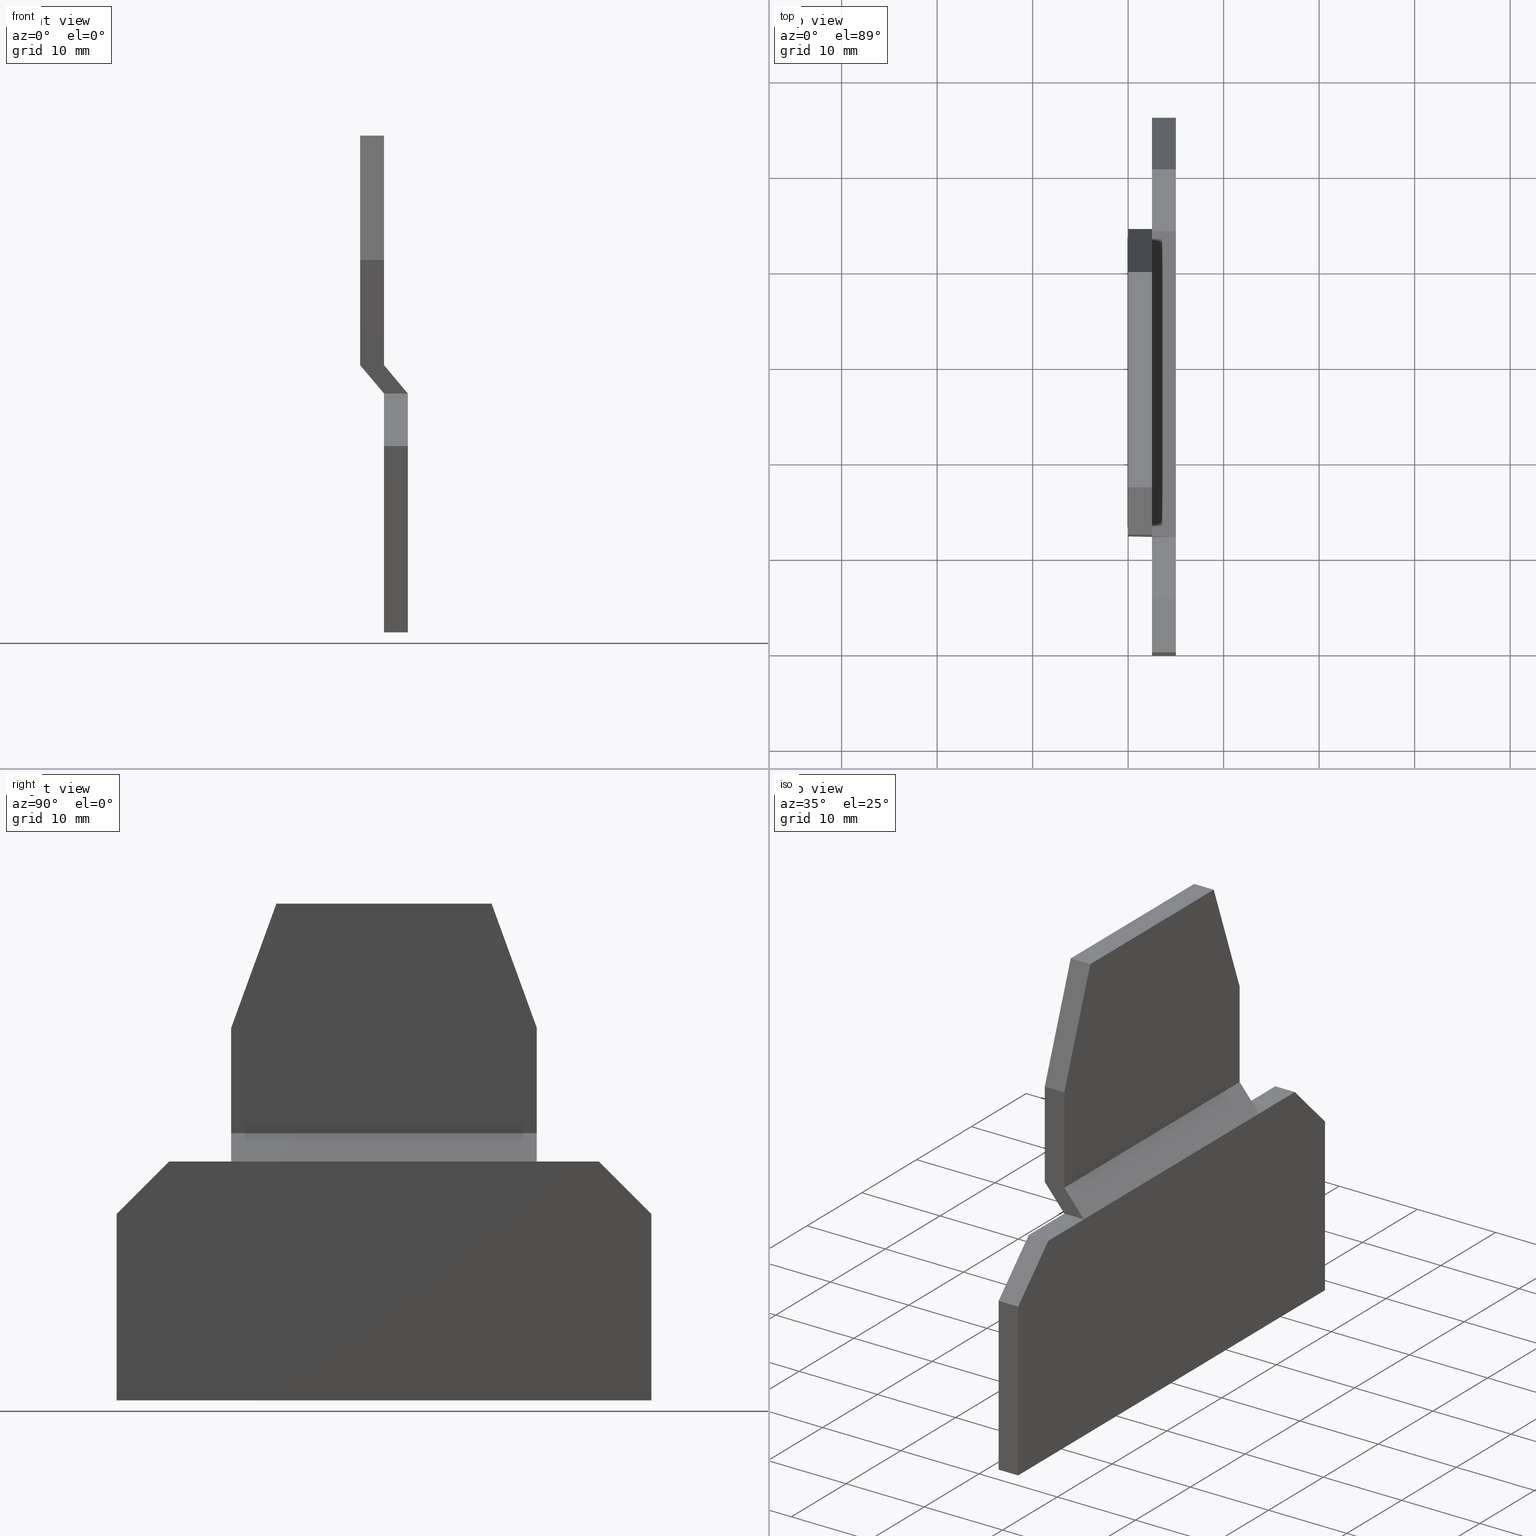
[diagram: canonical four-view strip — front | top / right | iso, engineering-drawing reading convention]
A machine part, canonical four-view strip (front | top / right | iso — engineering-drawing reading convention). The complete STEP part file that produces these views, byte-faithful:
ISO-10303-21;
HEADER;
FILE_DESCRIPTION(('Creo Elements/Direct Modeling STEP Export'),'2;1');
FILE_NAME(
'C:/temp/JobSpoolerServerData/JobServer Files/aceacf60-041b-48f9-a825-c8
1e3da80f4e/work/output/model.stp','2020-06-26T10:07:58',(''),(''),
'Creo Elements/Direct Modeling STEP processor for AP214 (Solid Model)',
'Creo Elements/Direct Modeling 20.1A  29-Sep-2018 (C) Parametric Technol
ogy GmbH','');
FILE_SCHEMA(('AUTOMOTIVE_DESIGN { 1 0 10303 214 1 1 1 1 }'));
ENDSEC;
DATA;
#10=CARTESIAN_POINT('',(12.09335858367,58.630769,-2.5));
#20=DIRECTION('',(0.,1.,-0.));
#30=DIRECTION('',(-1.,0.,0.));
#40=AXIS2_PLACEMENT_3D('',#10,#20,#30);
#50=PLANE('',#40);
#60=CARTESIAN_POINT('',(0.,58.630769,-2.5));
#70=DIRECTION('',(-1.,0.,0.));
#80=VECTOR('',#70,1.);
#90=LINE('',#60,#80);
#100=CARTESIAN_POINT('',(33.9299249545394,58.630769,-2.5));
#110=VERTEX_POINT('',#100);
#120=CARTESIAN_POINT('',(11.3931510454603,58.630769,-2.5));
#130=VERTEX_POINT('',#120);
#140=EDGE_CURVE('',#110,#130,#90,.T.);
#150=ORIENTED_EDGE('',*,*,#140,.T.);
#160=CARTESIAN_POINT('',(33.9299249545394,58.630769,0.));
#170=DIRECTION('',(0.,0.,-1.));
#180=VECTOR('',#170,1.);
#190=LINE('',#160,#180);
#200=CARTESIAN_POINT('',(33.9299249545394,58.630769,8.88178419700125E-16
));
#210=VERTEX_POINT('',#200);
#220=EDGE_CURVE('',#210,#110,#190,.T.);
#230=ORIENTED_EDGE('',*,*,#220,.T.);
#240=CARTESIAN_POINT('',(0.,58.630769,8.88178419700125E-16));
#250=DIRECTION('',(-1.,0.,0.));
#260=VECTOR('',#250,1.);
#270=LINE('',#240,#260);
#280=CARTESIAN_POINT('',(11.3931510454603,58.630769,8.88178419700125E-16
));
#290=VERTEX_POINT('',#280);
#300=EDGE_CURVE('',#210,#290,#270,.T.);
#310=ORIENTED_EDGE('',*,*,#300,.F.);
#320=CARTESIAN_POINT('',(11.3931510454603,58.630769,0.));
#330=DIRECTION('',(0.,0.,-1.));
#340=VECTOR('',#330,1.);
#350=LINE('',#320,#340);
#360=EDGE_CURVE('',#290,#130,#350,.T.);
#370=ORIENTED_EDGE('',*,*,#360,.F.);
#380=EDGE_LOOP('',(#370,#310,#230,#150));
#390=FACE_OUTER_BOUND('',#380,.T.);
#400=ADVANCED_FACE('',(#390),#50,.T.);
#410=COLOUR_RGB('',0.,0.443137288093567,0.709803938865662);
#420=FILL_AREA_STYLE_COLOUR('',#410);
#430=FILL_AREA_STYLE('',(#420));
#440=SURFACE_STYLE_FILL_AREA(#430);
#450=SURFACE_SIDE_STYLE('',(#440));
#460=SURFACE_STYLE_USAGE(.BOTH.,#450);
#470=PRESENTATION_STYLE_ASSIGNMENT((#460));
#480=CARTESIAN_POINT('',(-5.338462,31.630769,-2.5));
#490=DIRECTION('',(0.,-0.642787609686539,0.766044443118978));
#500=DIRECTION('',(0.,-0.766044443118978,-0.642787609686539));
#510=AXIS2_PLACEMENT_3D('',#480,#490,#500);
#520=PLANE('',#510);
#530=CARTESIAN_POINT('',(0.,34.6101529814855,8.88178419700125E-16));
#540=DIRECTION('',(1.,0.,0.));
#550=VECTOR('',#540,1.);
#560=LINE('',#530,#550);
#570=CARTESIAN_POINT('',(6.66153799999999,34.6101529814855,
8.88178419700125E-16));
#580=VERTEX_POINT('',#570);
#590=CARTESIAN_POINT('',(38.6615379999999,34.6101529814855,
8.88178419700125E-16));
#600=VERTEX_POINT('',#590);
#610=EDGE_CURVE('',#580,#600,#560,.T.);
#620=ORIENTED_EDGE('',*,*,#610,.F.);
#630=CARTESIAN_POINT('',(38.661538,0.,-29.0413666017537));
#640=DIRECTION('',(0.,0.766044443118978,0.642787609686539));
#650=VECTOR('',#640,1.);
#660=LINE('',#630,#650);
#670=CARTESIAN_POINT('',(38.6615379999999,31.630769,-2.5));
#680=VERTEX_POINT('',#670);
#690=EDGE_CURVE('',#680,#600,#660,.T.);
#700=ORIENTED_EDGE('',*,*,#690,.T.);
#710=CARTESIAN_POINT('',(0.,31.630769,-2.5));
#720=DIRECTION('',(-1.,0.,0.));
#730=VECTOR('',#720,1.);
#740=LINE('',#710,#730);
#750=CARTESIAN_POINT('',(6.66153799999999,31.630769,-2.5));
#760=VERTEX_POINT('',#750);
#770=EDGE_CURVE('',#680,#760,#740,.T.);
#780=ORIENTED_EDGE('',*,*,#770,.F.);
#790=CARTESIAN_POINT('',(6.66153799999999,0.,-29.0413666017537));
#800=DIRECTION('',(0.,-0.766044443118978,-0.642787609686539));
#810=VECTOR('',#800,1.);
#820=LINE('',#790,#810);
#830=EDGE_CURVE('',#580,#760,#820,.T.);
#840=ORIENTED_EDGE('',*,*,#830,.T.);
#850=EDGE_LOOP('',(#840,#780,#700,#620));
#860=FACE_OUTER_BOUND('',#850,.T.);
#870=ADVANCED_FACE('',(#860),#520,.T.);
#880=COLOUR_RGB('',0.,0.443137288093567,0.709803938865662);
#890=FILL_AREA_STYLE_COLOUR('',#880);
#900=FILL_AREA_STYLE('',(#890));
#910=SURFACE_STYLE_FILL_AREA(#900);
#920=SURFACE_SIDE_STYLE('',(#910));
#930=SURFACE_STYLE_USAGE(.BOTH.,#920);
#940=PRESENTATION_STYLE_ASSIGNMENT((#930));
#950=CARTESIAN_POINT('',(-5.338462,34.6101529814855,-2.5));
#960=DIRECTION('',(0.,0.642787609686539,-0.766044443118978));
#970=DIRECTION('',(0.,0.766044443118978,0.642787609686539));
#980=AXIS2_PLACEMENT_3D('',#950,#960,#970);
#990=PLANE('',#980);
#1000=CARTESIAN_POINT('',(0.,31.630769,-5.));
#1010=DIRECTION('',(1.,0.,0.));
#1020=VECTOR('',#1010,1.);
#1030=LINE('',#1000,#1020);
#1040=CARTESIAN_POINT('',(6.66153799999999,31.630769,-5.));
#1050=VERTEX_POINT('',#1040);
#1060=CARTESIAN_POINT('',(38.6615379999999,31.630769,-5.));
#1070=VERTEX_POINT('',#1060);
#1080=EDGE_CURVE('',#1050,#1070,#1030,.T.);
#1090=ORIENTED_EDGE('',*,*,#1080,.F.);
#1100=CARTESIAN_POINT('',(38.661538,0.,-31.5413666017537));
#1110=DIRECTION('',(0.,-0.766044443118978,-0.642787609686539));
#1120=VECTOR('',#1110,1.);
#1130=LINE('',#1100,#1120);
#1140=CARTESIAN_POINT('',(38.6615379999999,34.6101529814855,-2.5));
#1150=VERTEX_POINT('',#1140);
#1160=EDGE_CURVE('',#1150,#1070,#1130,.T.);
#1170=ORIENTED_EDGE('',*,*,#1160,.T.);
#1180=CARTESIAN_POINT('',(0.,34.6101529814855,-2.5));
#1190=DIRECTION('',(-1.,0.,0.));
#1200=VECTOR('',#1190,1.);
#1210=LINE('',#1180,#1200);
#1220=CARTESIAN_POINT('',(6.66153799999999,34.6101529814855,-2.5));
#1230=VERTEX_POINT('',#1220);
#1240=EDGE_CURVE('',#1150,#1230,#1210,.T.);
#1250=ORIENTED_EDGE('',*,*,#1240,.F.);
#1260=CARTESIAN_POINT('',(6.66153799999999,0.,-31.5413666017537));
#1270=DIRECTION('',(0.,0.766044443118978,0.642787609686539));
#1280=VECTOR('',#1270,1.);
#1290=LINE('',#1260,#1280);
#1300=EDGE_CURVE('',#1050,#1230,#1290,.T.);
#1310=ORIENTED_EDGE('',*,*,#1300,.T.);
#1320=EDGE_LOOP('',(#1310,#1250,#1170,#1090));
#1330=FACE_OUTER_BOUND('',#1320,.T.);
#1340=ADVANCED_FACE('',(#1330),#990,.T.);
#1350=COLOUR_RGB('',0.,0.443137288093567,0.709803938865662);
#1360=FILL_AREA_STYLE_COLOUR('',#1350);
#1370=FILL_AREA_STYLE('',(#1360));
#1380=SURFACE_STYLE_FILL_AREA(#1370);
#1390=SURFACE_SIDE_STYLE('',(#1380));
#1400=SURFACE_STYLE_USAGE(.BOTH.,#1390);
#1410=PRESENTATION_STYLE_ASSIGNMENT((#1400));
#1420=CARTESIAN_POINT('',(6.66153799999999,34.6101529814855,-2.5));
#1430=DIRECTION('',(-1.,0.,0.));
#1440=DIRECTION('',(0.,-1.,0.));
#1450=AXIS2_PLACEMENT_3D('',#1420,#1430,#1440);
#1460=PLANE('',#1450);
#1470=CARTESIAN_POINT('',(6.66153799999999,45.6307690000006,0.));
#1480=DIRECTION('',(0.,0.,-1.));
#1490=VECTOR('',#1480,1.);
#1500=LINE('',#1470,#1490);
#1510=CARTESIAN_POINT('',(6.661538,45.6307690000006,8.88178419700125E-16
));
#1520=VERTEX_POINT('',#1510);
#1530=CARTESIAN_POINT('',(6.66153799999999,45.6307690000006,-2.5));
#1540=VERTEX_POINT('',#1530);
#1550=EDGE_CURVE('',#1520,#1540,#1500,.T.);
#1560=ORIENTED_EDGE('',*,*,#1550,.T.);
#1570=CARTESIAN_POINT('',(6.66153799999999,0.,8.88178419700125E-16));
#1580=DIRECTION('',(0.,-1.,0.));
#1590=VECTOR('',#1580,1.);
#1600=LINE('',#1570,#1590);
#1610=EDGE_CURVE('',#1520,#580,#1600,.T.);
#1620=ORIENTED_EDGE('',*,*,#1610,.F.);
#1630=ORIENTED_EDGE('',*,*,#830,.F.);
#1640=CARTESIAN_POINT('',(6.66153799999999,31.630769,0.));
#1650=DIRECTION('',(0.,0.,-1.));
#1660=VECTOR('',#1650,1.);
#1670=LINE('',#1640,#1660);
#1680=EDGE_CURVE('',#760,#1050,#1670,.T.);
#1690=ORIENTED_EDGE('',*,*,#1680,.F.);
#1700=ORIENTED_EDGE('',*,*,#1300,.F.);
#1710=CARTESIAN_POINT('',(6.66153799999999,0.,-2.5));
#1720=DIRECTION('',(0.,-1.,0.));
#1730=VECTOR('',#1720,1.);
#1740=LINE('',#1710,#1730);
#1750=EDGE_CURVE('',#1540,#1230,#1740,.T.);
#1760=ORIENTED_EDGE('',*,*,#1750,.T.);
#1770=EDGE_LOOP('',(#1760,#1700,#1690,#1630,#1620,#1560));
#1780=FACE_OUTER_BOUND('',#1770,.T.);
#1790=ADVANCED_FACE('',(#1780),#1460,.T.);
#1800=COLOUR_RGB('',0.,0.443137288093567,0.709803938865662);
#1810=FILL_AREA_STYLE_COLOUR('',#1800);
#1820=FILL_AREA_STYLE('',(#1810));
#1830=SURFACE_STYLE_FILL_AREA(#1820);
#1840=SURFACE_SIDE_STYLE('',(#1830));
#1850=SURFACE_STYLE_USAGE(.BOTH.,#1840);
#1860=PRESENTATION_STYLE_ASSIGNMENT((#1850));
#1870=CARTESIAN_POINT('',(-5.33846200000012,26.130769,-5.));
#1880=DIRECTION('',(-0.707106781186547,0.707106781186548,0.));
#1890=DIRECTION('',(-0.707106781186548,-0.707106781186547,0.));
#1900=AXIS2_PLACEMENT_3D('',#1870,#1880,#1890);
#1910=PLANE('',#1900);
#1920=CARTESIAN_POINT('',(0.161537999999886,31.630769,0.));
#1930=DIRECTION('',(0.,0.,1.));
#1940=VECTOR('',#1930,1.);
#1950=LINE('',#1920,#1940);
#1960=CARTESIAN_POINT('',(0.161537999999886,31.630769,-5.));
#1970=VERTEX_POINT('',#1960);
#1980=CARTESIAN_POINT('',(0.161537999999886,31.630769,-2.5));
#1990=VERTEX_POINT('',#1980);
#2000=EDGE_CURVE('',#1970,#1990,#1950,.T.);
#2010=ORIENTED_EDGE('',*,*,#2000,.F.);
#2020=CARTESIAN_POINT('',(0.,31.4692310000001,-2.5));
#2030=DIRECTION('',(-0.707106781186548,-0.707106781186547,0.));
#2040=VECTOR('',#2030,1.);
#2050=LINE('',#2020,#2040);
#2060=CARTESIAN_POINT('',(-5.33846200000001,26.1307689999998,-2.5));
#2070=VERTEX_POINT('',#2060);
#2080=EDGE_CURVE('',#1990,#2070,#2050,.T.);
#2090=ORIENTED_EDGE('',*,*,#2080,.F.);
#2100=CARTESIAN_POINT('',(-5.33846200000031,26.1307689999998,0.));
#2110=DIRECTION('',(0.,0.,-1.));
#2120=VECTOR('',#2110,1.);
#2130=LINE('',#2100,#2120);
#2140=CARTESIAN_POINT('',(-5.33846200000001,26.130769,-5.));
#2150=VERTEX_POINT('',#2140);
#2160=EDGE_CURVE('',#2070,#2150,#2130,.T.);
#2170=ORIENTED_EDGE('',*,*,#2160,.F.);
#2180=CARTESIAN_POINT('',(0.,31.4692310000001,-5.));
#2190=DIRECTION('',(-0.707106781186548,-0.707106781186547,0.));
#2200=VECTOR('',#2190,1.);
#2210=LINE('',#2180,#2200);
#2220=EDGE_CURVE('',#1970,#2150,#2210,.T.);
#2230=ORIENTED_EDGE('',*,*,#2220,.T.);
#2240=EDGE_LOOP('',(#2230,#2170,#2090,#2010));
#2250=FACE_OUTER_BOUND('',#2240,.T.);
#2260=ADVANCED_FACE('',(#2250),#1910,.T.);
#2270=COLOUR_RGB('',0.,0.443137288093567,0.709803938865662);
#2280=FILL_AREA_STYLE_COLOUR('',#2270);
#2290=FILL_AREA_STYLE('',(#2280));
#2300=SURFACE_STYLE_FILL_AREA(#2290);
#2310=SURFACE_SIDE_STYLE('',(#2300));
#2320=SURFACE_STYLE_USAGE(.BOTH.,#2310);
#2330=PRESENTATION_STYLE_ASSIGNMENT((#2320));
#2340=CARTESIAN_POINT('',(6.66153799999982,45.6307690000001,-2.5));
#2350=DIRECTION('',(-0.939692620785911,0.342020143325662,0.));
#2360=DIRECTION('',(-0.342020143325662,-0.939692620785911,0.));
#2370=AXIS2_PLACEMENT_3D('',#2340,#2350,#2360);
#2380=PLANE('',#2370);
#2390=ORIENTED_EDGE('',*,*,#360,.T.);
#2400=CARTESIAN_POINT('',(-9.94670368267679,0.,8.88178419700125E-16));
#2410=DIRECTION('',(-0.342020143325662,-0.939692620785911,0.));
#2420=VECTOR('',#2410,1.);
#2430=LINE('',#2400,#2420);
#2440=EDGE_CURVE('',#290,#1520,#2430,.T.);
#2450=ORIENTED_EDGE('',*,*,#2440,.F.);
#2460=ORIENTED_EDGE('',*,*,#1550,.F.);
#2470=CARTESIAN_POINT('',(-9.94670368267679,0.,-2.5));
#2480=DIRECTION('',(-0.342020143325662,-0.939692620785911,0.));
#2490=VECTOR('',#2480,1.);
#2500=LINE('',#2470,#2490);
#2510=EDGE_CURVE('',#130,#1540,#2500,.T.);
#2520=ORIENTED_EDGE('',*,*,#2510,.T.);
#2530=EDGE_LOOP('',(#2520,#2460,#2450,#2390));
#2540=FACE_OUTER_BOUND('',#2530,.T.);
#2550=ADVANCED_FACE('',(#2540),#2380,.T.);
#2560=COLOUR_RGB('',0.,0.443137288093567,0.709803938865662);
#2570=FILL_AREA_STYLE_COLOUR('',#2560);
#2580=FILL_AREA_STYLE('',(#2570));
#2590=SURFACE_STYLE_FILL_AREA(#2580);
#2600=SURFACE_SIDE_STYLE('',(#2590));
#2610=SURFACE_STYLE_USAGE(.BOTH.,#2600);
#2620=PRESENTATION_STYLE_ASSIGNMENT((#2610));
#2630=CARTESIAN_POINT('',(25.4171514487047,51.5564832144869,
8.88178419700125E-16));
#2640=DIRECTION('',(0.,0.,-1.));
#2650=DIRECTION('',(-1.,0.,0.));
#2660=AXIS2_PLACEMENT_3D('',#2630,#2640,#2650);
#2670=PLANE('',#2660);
#2680=ORIENTED_EDGE('',*,*,#300,.T.);
#2690=CARTESIAN_POINT('',(55.2697796826765,0.,8.88178419700125E-16));
#2700=DIRECTION('',(-0.342020143325662,0.939692620785911,0.));
#2710=VECTOR('',#2700,1.);
#2720=LINE('',#2690,#2710);
#2730=CARTESIAN_POINT('',(38.6615379999999,45.630769,
8.88178419700125E-16));
#2740=VERTEX_POINT('',#2730);
#2750=EDGE_CURVE('',#2740,#210,#2720,.T.);
#2760=ORIENTED_EDGE('',*,*,#2750,.T.);
#2770=CARTESIAN_POINT('',(38.6615379999999,0.,8.88178419700125E-16));
#2780=DIRECTION('',(0.,1.,0.));
#2790=VECTOR('',#2780,1.);
#2800=LINE('',#2770,#2790);
#2810=EDGE_CURVE('',#600,#2740,#2800,.T.);
#2820=ORIENTED_EDGE('',*,*,#2810,.T.);
#2830=ORIENTED_EDGE('',*,*,#610,.T.);
#2840=ORIENTED_EDGE('',*,*,#1610,.T.);
#2850=ORIENTED_EDGE('',*,*,#2440,.T.);
#2860=EDGE_LOOP('',(#2850,#2840,#2830,#2820,#2760,#2680));
#2870=FACE_OUTER_BOUND('',#2860,.T.);
#2880=ADVANCED_FACE('',(#2870),#2670,.F.);
#2890=COLOUR_RGB('',0.,0.443137288093567,0.709803938865662);
#2900=FILL_AREA_STYLE_COLOUR('',#2890);
#2910=FILL_AREA_STYLE('',(#2900));
#2920=SURFACE_STYLE_FILL_AREA(#2910);
#2930=SURFACE_SIDE_STYLE('',(#2920));
#2940=SURFACE_STYLE_USAGE(.BOTH.,#2930);
#2950=PRESENTATION_STYLE_ASSIGNMENT((#2940));
#2960=CARTESIAN_POINT('',(3.25686670547196,24.4393485462809,-2.5));
#2970=DIRECTION('',(0.,0.,-1.));
#2980=DIRECTION('',(-1.,0.,0.));
#2990=AXIS2_PLACEMENT_3D('',#2960,#2970,#2980);
#3000=PLANE('',#2990);
#3010=CARTESIAN_POINT('',(-5.33846200000001,0.,-2.5));
#3020=DIRECTION('',(0.,-1.,0.));
#3030=VECTOR('',#3020,1.);
#3040=LINE('',#3010,#3030);
#3050=CARTESIAN_POINT('',(-5.33846200000001,6.630769,-2.5));
#3060=VERTEX_POINT('',#3050);
#3070=EDGE_CURVE('',#2070,#3060,#3040,.T.);
#3080=ORIENTED_EDGE('',*,*,#3070,.T.);
#3090=ORIENTED_EDGE('',*,*,#2080,.T.);
#3100=CARTESIAN_POINT('',(0.,31.630769,-2.5));
#3110=DIRECTION('',(-1.,0.,0.));
#3120=VECTOR('',#3110,1.);
#3130=LINE('',#3100,#3120);
#3140=EDGE_CURVE('',#760,#1990,#3130,.T.);
#3150=ORIENTED_EDGE('',*,*,#3140,.T.);
#3160=ORIENTED_EDGE('',*,*,#770,.T.);
#3170=CARTESIAN_POINT('',(0.,31.630769,-2.5));
#3180=DIRECTION('',(-1.,0.,0.));
#3190=VECTOR('',#3180,1.);
#3200=LINE('',#3170,#3190);
#3210=CARTESIAN_POINT('',(45.161538,31.630769,-2.5));
#3220=VERTEX_POINT('',#3210);
#3230=EDGE_CURVE('',#3220,#680,#3200,.T.);
#3240=ORIENTED_EDGE('',*,*,#3230,.T.);
#3250=CARTESIAN_POINT('',(0.,76.792307,-2.5));
#3260=DIRECTION('',(-0.707106781186548,0.707106781186547,0.));
#3270=VECTOR('',#3260,1.);
#3280=LINE('',#3250,#3270);
#3290=CARTESIAN_POINT('',(50.661538,26.130769,-2.5));
#3300=VERTEX_POINT('',#3290);
#3310=EDGE_CURVE('',#3300,#3220,#3280,.T.);
#3320=ORIENTED_EDGE('',*,*,#3310,.T.);
#3330=CARTESIAN_POINT('',(50.661538,0.,-2.5));
#3340=DIRECTION('',(0.,1.,0.));
#3350=VECTOR('',#3340,1.);
#3360=LINE('',#3330,#3350);
#3370=CARTESIAN_POINT('',(50.661538,6.630769,-2.5));
#3380=VERTEX_POINT('',#3370);
#3390=EDGE_CURVE('',#3380,#3300,#3360,.T.);
#3400=ORIENTED_EDGE('',*,*,#3390,.T.);
#3410=CARTESIAN_POINT('',(0.,6.630769,-2.5));
#3420=DIRECTION('',(1.,0.,0.));
#3430=VECTOR('',#3420,1.);
#3440=LINE('',#3410,#3430);
#3450=EDGE_CURVE('',#3060,#3380,#3440,.T.);
#3460=ORIENTED_EDGE('',*,*,#3450,.T.);
#3470=EDGE_LOOP('',(#3460,#3400,#3320,#3240,#3160,#3150,#3090,#3080));
#3480=FACE_OUTER_BOUND('',#3470,.T.);
#3490=ADVANCED_FACE('',(#3480),#3000,.F.);
#3500=COLOUR_RGB('',0.,0.443137288093567,0.709803938865662);
#3510=FILL_AREA_STYLE_COLOUR('',#3500);
#3520=FILL_AREA_STYLE('',(#3510));
#3530=SURFACE_STYLE_FILL_AREA(#3520);
#3540=SURFACE_SIDE_STYLE('',(#3530));
#3550=SURFACE_STYLE_USAGE(.BOTH.,#3540);
#3560=PRESENTATION_STYLE_ASSIGNMENT((#3550));
#3570=CARTESIAN_POINT('',(0.161537999999883,31.630769,-5.));
#3580=DIRECTION('',(0.,1.,-0.));
#3590=DIRECTION('',(-1.,0.,0.));
#3600=AXIS2_PLACEMENT_3D('',#3570,#3580,#3590);
#3610=PLANE('',#3600);
#3620=ORIENTED_EDGE('',*,*,#1680,.T.);
#3630=ORIENTED_EDGE('',*,*,#3140,.F.);
#3640=ORIENTED_EDGE('',*,*,#2000,.T.);
#3650=CARTESIAN_POINT('',(0.,31.630769,-5.));
#3660=DIRECTION('',(-1.,0.,0.));
#3670=VECTOR('',#3660,1.);
#3680=LINE('',#3650,#3670);
#3690=EDGE_CURVE('',#1050,#1970,#3680,.T.);
#3700=ORIENTED_EDGE('',*,*,#3690,.T.);
#3710=EDGE_LOOP('',(#3700,#3640,#3630,#3620));
#3720=FACE_OUTER_BOUND('',#3710,.T.);
#3730=ADVANCED_FACE('',(#3720),#3610,.T.);
#3740=COLOUR_RGB('',0.,0.443137288093567,0.709803938865662);
#3750=FILL_AREA_STYLE_COLOUR('',#3740);
#3760=FILL_AREA_STYLE('',(#3750));
#3770=SURFACE_STYLE_FILL_AREA(#3760);
#3780=SURFACE_SIDE_STYLE('',(#3770));
#3790=SURFACE_STYLE_USAGE(.BOTH.,#3780);
#3800=PRESENTATION_STYLE_ASSIGNMENT((#3790));
#3810=CARTESIAN_POINT('',(38.6615379999999,45.630769,-2.5));
#3820=DIRECTION('',(1.,0.,0.));
#3830=DIRECTION('',(0.,1.,0.));
#3840=AXIS2_PLACEMENT_3D('',#3810,#3820,#3830);
#3850=PLANE('',#3840);
#3860=ORIENTED_EDGE('',*,*,#1160,.F.);
#3870=CARTESIAN_POINT('',(38.661538,31.630769,0.));
#3880=DIRECTION('',(0.,0.,1.));
#3890=VECTOR('',#3880,1.);
#3900=LINE('',#3870,#3890);
#3910=EDGE_CURVE('',#1070,#680,#3900,.T.);
#3920=ORIENTED_EDGE('',*,*,#3910,.F.);
#3930=ORIENTED_EDGE('',*,*,#690,.F.);
#3940=ORIENTED_EDGE('',*,*,#2810,.F.);
#3950=CARTESIAN_POINT('',(38.6615379999999,45.630769,0.));
#3960=DIRECTION('',(0.,0.,-1.));
#3970=VECTOR('',#3960,1.);
#3980=LINE('',#3950,#3970);
#3990=CARTESIAN_POINT('',(38.6615379999999,45.630769,-2.5));
#4000=VERTEX_POINT('',#3990);
#4010=EDGE_CURVE('',#2740,#4000,#3980,.T.);
#4020=ORIENTED_EDGE('',*,*,#4010,.F.);
#4030=CARTESIAN_POINT('',(38.6615379999999,0.,-2.5));
#4040=DIRECTION('',(0.,1.,0.));
#4050=VECTOR('',#4040,1.);
#4060=LINE('',#4030,#4050);
#4070=EDGE_CURVE('',#1150,#4000,#4060,.T.);
#4080=ORIENTED_EDGE('',*,*,#4070,.T.);
#4090=EDGE_LOOP('',(#4080,#4020,#3940,#3930,#3920,#3860));
#4100=FACE_OUTER_BOUND('',#4090,.T.);
#4110=ADVANCED_FACE('',(#4100),#3850,.T.);
#4120=COLOUR_RGB('',0.,0.443137288093567,0.709803938865662);
#4130=FILL_AREA_STYLE_COLOUR('',#4120);
#4140=FILL_AREA_STYLE('',(#4130));
#4150=SURFACE_STYLE_FILL_AREA(#4140);
#4160=SURFACE_SIDE_STYLE('',(#4150));
#4170=SURFACE_STYLE_USAGE(.BOTH.,#4160);
#4180=PRESENTATION_STYLE_ASSIGNMENT((#4170));
#4190=CARTESIAN_POINT('',(34.1694100371156,57.9727891433257,-2.5));
#4200=DIRECTION('',(0.939692620785911,0.342020143325662,-0.));
#4210=DIRECTION('',(-0.342020143325662,0.939692620785911,0.));
#4220=AXIS2_PLACEMENT_3D('',#4190,#4200,#4210);
#4230=PLANE('',#4220);
#4240=CARTESIAN_POINT('',(55.2697796826765,0.,-2.5));
#4250=DIRECTION('',(-0.342020143325662,0.939692620785911,0.));
#4260=VECTOR('',#4250,1.);
#4270=LINE('',#4240,#4260);
#4280=EDGE_CURVE('',#4000,#110,#4270,.T.);
#4290=ORIENTED_EDGE('',*,*,#4280,.T.);
#4300=ORIENTED_EDGE('',*,*,#4010,.T.);
#4310=ORIENTED_EDGE('',*,*,#2750,.F.);
#4320=ORIENTED_EDGE('',*,*,#220,.F.);
#4330=EDGE_LOOP('',(#4320,#4310,#4300,#4290));
#4340=FACE_OUTER_BOUND('',#4330,.T.);
#4350=ADVANCED_FACE('',(#4340),#4230,.T.);
#4360=COLOUR_RGB('',0.,0.443137288093567,0.709803938865662);
#4370=FILL_AREA_STYLE_COLOUR('',#4360);
#4380=FILL_AREA_STYLE('',(#4370));
#4390=SURFACE_STYLE_FILL_AREA(#4380);
#4400=SURFACE_SIDE_STYLE('',(#4390));
#4410=SURFACE_STYLE_USAGE(.BOTH.,#4400);
#4420=PRESENTATION_STYLE_ASSIGNMENT((#4410));
#4430=CARTESIAN_POINT('',(49.661538,6.630769,-5.));
#4440=DIRECTION('',(0.,-1.,0.));
#4450=DIRECTION('',(1.,0.,0.));
#4460=AXIS2_PLACEMENT_3D('',#4430,#4440,#4450);
#4470=PLANE('',#4460);
#4480=CARTESIAN_POINT('',(-5.33846200000001,6.630769,0.));
#4490=DIRECTION('',(0.,0.,-1.));
#4500=VECTOR('',#4490,1.);
#4510=LINE('',#4480,#4500);
#4520=CARTESIAN_POINT('',(-5.33846200000001,6.630769,-5.));
#4530=VERTEX_POINT('',#4520);
#4540=EDGE_CURVE('',#3060,#4530,#4510,.T.);
#4550=ORIENTED_EDGE('',*,*,#4540,.T.);
#4560=ORIENTED_EDGE('',*,*,#3450,.F.);
#4570=CARTESIAN_POINT('',(50.661538,6.630769,0.));
#4580=DIRECTION('',(0.,0.,-1.));
#4590=VECTOR('',#4580,1.);
#4600=LINE('',#4570,#4590);
#4610=CARTESIAN_POINT('',(50.661538,6.630769,-5.));
#4620=VERTEX_POINT('',#4610);
#4630=EDGE_CURVE('',#3380,#4620,#4600,.T.);
#4640=ORIENTED_EDGE('',*,*,#4630,.F.);
#4650=CARTESIAN_POINT('',(0.,6.630769,-5.));
#4660=DIRECTION('',(1.,0.,0.));
#4670=VECTOR('',#4660,1.);
#4680=LINE('',#4650,#4670);
#4690=EDGE_CURVE('',#4530,#4620,#4680,.T.);
#4700=ORIENTED_EDGE('',*,*,#4690,.T.);
#4710=EDGE_LOOP('',(#4700,#4640,#4560,#4550));
#4720=FACE_OUTER_BOUND('',#4710,.T.);
#4730=ADVANCED_FACE('',(#4720),#4470,.T.);
#4740=COLOUR_RGB('',0.,0.443137288093567,0.709803938865662);
#4750=FILL_AREA_STYLE_COLOUR('',#4740);
#4760=FILL_AREA_STYLE('',(#4750));
#4770=SURFACE_STYLE_FILL_AREA(#4760);
#4780=SURFACE_SIDE_STYLE('',(#4770));
#4790=SURFACE_STYLE_USAGE(.BOTH.,#4780);
#4800=PRESENTATION_STYLE_ASSIGNMENT((#4790));
#4810=CARTESIAN_POINT('',(-5.33846200000001,7.630769,-5.));
#4820=DIRECTION('',(-1.,0.,0.));
#4830=DIRECTION('',(0.,-1.,0.));
#4840=AXIS2_PLACEMENT_3D('',#4810,#4820,#4830);
#4850=PLANE('',#4840);
#4860=CARTESIAN_POINT('',(-5.33846200000001,0.,-5.));
#4870=DIRECTION('',(0.,-1.,0.));
#4880=VECTOR('',#4870,1.);
#4890=LINE('',#4860,#4880);
#4900=EDGE_CURVE('',#2150,#4530,#4890,.T.);
#4910=ORIENTED_EDGE('',*,*,#4900,.T.);
#4920=ORIENTED_EDGE('',*,*,#2160,.T.);
#4930=ORIENTED_EDGE('',*,*,#3070,.F.);
#4940=ORIENTED_EDGE('',*,*,#4540,.F.);
#4950=EDGE_LOOP('',(#4940,#4930,#4920,#4910));
#4960=FACE_OUTER_BOUND('',#4950,.T.);
#4970=ADVANCED_FACE('',(#4960),#4850,.T.);
#4980=COLOUR_RGB('',0.,0.443137288093567,0.709803938865662);
#4990=FILL_AREA_STYLE_COLOUR('',#4980);
#5000=FILL_AREA_STYLE('',(#4990));
#5010=SURFACE_STYLE_FILL_AREA(#5000);
#5020=SURFACE_SIDE_STYLE('',(#5010));
#5030=SURFACE_STYLE_USAGE(.BOTH.,#5020);
#5040=PRESENTATION_STYLE_ASSIGNMENT((#5030));
#5050=CARTESIAN_POINT('',(25.4171514487047,51.5564832144869,-2.5));
#5060=DIRECTION('',(0.,0.,-1.));
#5070=DIRECTION('',(-1.,0.,0.));
#5080=AXIS2_PLACEMENT_3D('',#5050,#5060,#5070);
#5090=PLANE('',#5080);
#5100=ORIENTED_EDGE('',*,*,#2510,.F.);
#5110=ORIENTED_EDGE('',*,*,#1750,.F.);
#5120=ORIENTED_EDGE('',*,*,#1240,.T.);
#5130=ORIENTED_EDGE('',*,*,#4070,.F.);
#5140=ORIENTED_EDGE('',*,*,#4280,.F.);
#5150=ORIENTED_EDGE('',*,*,#140,.F.);
#5160=EDGE_LOOP('',(#5150,#5140,#5130,#5120,#5110,#5100));
#5170=FACE_OUTER_BOUND('',#5160,.T.);
#5180=ADVANCED_FACE('',(#5170),#5090,.T.);
#5190=COLOUR_RGB('',0.,0.443137288093567,0.709803938865662);
#5200=FILL_AREA_STYLE_COLOUR('',#5190);
#5210=FILL_AREA_STYLE('',(#5200));
#5220=SURFACE_STYLE_FILL_AREA(#5210);
#5230=SURFACE_SIDE_STYLE('',(#5220));
#5240=SURFACE_STYLE_USAGE(.BOTH.,#5230);
#5250=PRESENTATION_STYLE_ASSIGNMENT((#5240));
#5260=CARTESIAN_POINT('',(45.161538,31.630769,-5.));
#5270=DIRECTION('',(0.707106781186547,0.707106781186548,-0.));
#5280=DIRECTION('',(-0.707106781186548,0.707106781186547,0.));
#5290=AXIS2_PLACEMENT_3D('',#5260,#5270,#5280);
#5300=PLANE('',#5290);
#5310=CARTESIAN_POINT('',(50.661538,26.130769,0.));
#5320=DIRECTION('',(0.,0.,-1.));
#5330=VECTOR('',#5320,1.);
#5340=LINE('',#5310,#5330);
#5350=CARTESIAN_POINT('',(50.661538,26.130769,-5.));
#5360=VERTEX_POINT('',#5350);
#5370=EDGE_CURVE('',#3300,#5360,#5340,.T.);
#5380=ORIENTED_EDGE('',*,*,#5370,.T.);
#5390=ORIENTED_EDGE('',*,*,#3310,.F.);
#5400=CARTESIAN_POINT('',(45.161538,31.630769,0.));
#5410=DIRECTION('',(0.,0.,-1.));
#5420=VECTOR('',#5410,1.);
#5430=LINE('',#5400,#5420);
#5440=CARTESIAN_POINT('',(45.161538,31.630769,-5.));
#5450=VERTEX_POINT('',#5440);
#5460=EDGE_CURVE('',#3220,#5450,#5430,.T.);
#5470=ORIENTED_EDGE('',*,*,#5460,.F.);
#5480=CARTESIAN_POINT('',(0.,76.792307,-5.));
#5490=DIRECTION('',(-0.707106781186548,0.707106781186547,0.));
#5500=VECTOR('',#5490,1.);
#5510=LINE('',#5480,#5500);
#5520=EDGE_CURVE('',#5360,#5450,#5510,.T.);
#5530=ORIENTED_EDGE('',*,*,#5520,.T.);
#5540=EDGE_LOOP('',(#5530,#5470,#5390,#5380));
#5550=FACE_OUTER_BOUND('',#5540,.T.);
#5560=ADVANCED_FACE('',(#5550),#5300,.T.);
#5570=COLOUR_RGB('',0.,0.443137288093567,0.709803938865662);
#5580=FILL_AREA_STYLE_COLOUR('',#5570);
#5590=FILL_AREA_STYLE('',(#5580));
#5600=SURFACE_STYLE_FILL_AREA(#5590);
#5610=SURFACE_SIDE_STYLE('',(#5600));
#5620=SURFACE_STYLE_USAGE(.BOTH.,#5610);
#5630=PRESENTATION_STYLE_ASSIGNMENT((#5620));
#5640=CARTESIAN_POINT('',(3.25686670547196,24.4393485462809,-5.));
#5650=DIRECTION('',(0.,0.,-1.));
#5660=DIRECTION('',(-1.,0.,0.));
#5670=AXIS2_PLACEMENT_3D('',#5640,#5650,#5660);
#5680=PLANE('',#5670);
#5690=ORIENTED_EDGE('',*,*,#4690,.F.);
#5700=CARTESIAN_POINT('',(50.661538,0.,-5.));
#5710=DIRECTION('',(0.,1.,0.));
#5720=VECTOR('',#5710,1.);
#5730=LINE('',#5700,#5720);
#5740=EDGE_CURVE('',#4620,#5360,#5730,.T.);
#5750=ORIENTED_EDGE('',*,*,#5740,.F.);
#5760=ORIENTED_EDGE('',*,*,#5520,.F.);
#5770=CARTESIAN_POINT('',(0.,31.630769,-5.));
#5780=DIRECTION('',(-1.,0.,0.));
#5790=VECTOR('',#5780,1.);
#5800=LINE('',#5770,#5790);
#5810=EDGE_CURVE('',#5450,#1070,#5800,.T.);
#5820=ORIENTED_EDGE('',*,*,#5810,.F.);
#5830=ORIENTED_EDGE('',*,*,#1080,.T.);
#5840=ORIENTED_EDGE('',*,*,#3690,.F.);
#5850=ORIENTED_EDGE('',*,*,#2220,.F.);
#5860=ORIENTED_EDGE('',*,*,#4900,.F.);
#5870=EDGE_LOOP('',(#5860,#5850,#5840,#5830,#5820,#5760,#5750,#5690));
#5880=FACE_OUTER_BOUND('',#5870,.T.);
#5890=ADVANCED_FACE('',(#5880),#5680,.T.);
#5900=COLOUR_RGB('',0.,0.443137288093567,0.709803938865662);
#5910=FILL_AREA_STYLE_COLOUR('',#5900);
#5920=FILL_AREA_STYLE('',(#5910));
#5930=SURFACE_STYLE_FILL_AREA(#5920);
#5940=SURFACE_SIDE_STYLE('',(#5930));
#5950=SURFACE_STYLE_USAGE(.BOTH.,#5940);
#5960=PRESENTATION_STYLE_ASSIGNMENT((#5950));
#5970=CARTESIAN_POINT('',(38.661538,31.630769,-5.));
#5980=DIRECTION('',(0.,1.,-0.));
#5990=DIRECTION('',(-1.,0.,0.));
#6000=AXIS2_PLACEMENT_3D('',#5970,#5980,#5990);
#6010=PLANE('',#6000);
#6020=ORIENTED_EDGE('',*,*,#5460,.T.);
#6030=ORIENTED_EDGE('',*,*,#3230,.F.);
#6040=ORIENTED_EDGE('',*,*,#3910,.T.);
#6050=ORIENTED_EDGE('',*,*,#5810,.T.);
#6060=EDGE_LOOP('',(#6050,#6040,#6030,#6020));
#6070=FACE_OUTER_BOUND('',#6060,.T.);
#6080=ADVANCED_FACE('',(#6070),#6010,.T.);
#6090=COLOUR_RGB('',0.,0.443137288093567,0.709803938865662);
#6100=FILL_AREA_STYLE_COLOUR('',#6090);
#6110=FILL_AREA_STYLE('',(#6100));
#6120=SURFACE_STYLE_FILL_AREA(#6110);
#6130=SURFACE_SIDE_STYLE('',(#6120));
#6140=SURFACE_STYLE_USAGE(.BOTH.,#6130);
#6150=PRESENTATION_STYLE_ASSIGNMENT((#6140));
#6160=CARTESIAN_POINT('',(50.661538,26.130769,-5.));
#6170=DIRECTION('',(1.,0.,0.));
#6180=DIRECTION('',(0.,1.,0.));
#6190=AXIS2_PLACEMENT_3D('',#6160,#6170,#6180);
#6200=PLANE('',#6190);
#6210=ORIENTED_EDGE('',*,*,#4630,.T.);
#6220=ORIENTED_EDGE('',*,*,#3390,.F.);
#6230=ORIENTED_EDGE('',*,*,#5370,.F.);
#6240=ORIENTED_EDGE('',*,*,#5740,.T.);
#6250=EDGE_LOOP('',(#6240,#6230,#6220,#6210));
#6260=FACE_OUTER_BOUND('',#6250,.T.);
#6270=ADVANCED_FACE('',(#6260),#6200,.T.);
#6280=COLOUR_RGB('',0.,0.443137288093567,0.709803938865662);
#6290=FILL_AREA_STYLE_COLOUR('',#6280);
#6300=FILL_AREA_STYLE('',(#6290));
#6310=SURFACE_STYLE_FILL_AREA(#6300);
#6320=SURFACE_SIDE_STYLE('',(#6310));
#6330=SURFACE_STYLE_USAGE(.BOTH.,#6320);
#6340=PRESENTATION_STYLE_ASSIGNMENT((#6330));
#6350=CLOSED_SHELL('',(#4110,#4350,#4730,#4970,#5180,#5560,#5890,#6080,
#6270,#400,#870,#1340,#1790,#2260,#2550,#2880,#3490,#3730));
#6360=MANIFOLD_SOLID_BREP('',#6350);
#6370=CARTESIAN_POINT('',(0.,0.,0.));
#6380=DIRECTION('',(0.,0.,1.));
#6390=DIRECTION('',(1.,0.,0.));
#6400=AXIS2_PLACEMENT_3D('',#6370,#6380,#6390);
#6410=APPLICATION_CONTEXT(' ');
#6420=APPLICATION_PROTOCOL_DEFINITION(' ','automotive_design',1998,#6410
);
#6430=PRODUCT_CONTEXT('',#6410,'mechanical');
#6440=PRODUCT_DEFINITION_CONTEXT('part definition',#6410,'design');
#6450=PRODUCT('D-UKK_3_5_BU-select','D-UKK_3_5_BU-select','',(#6430));
#6460=PRODUCT_RELATED_PRODUCT_CATEGORY('part',' ',(#6450));
#6470=PRODUCT_DEFINITION_FORMATION_WITH_SPECIFIED_SOURCE('','',#6450,
.BOUGHT.);
#6480=PRODUCT_DEFINITION('',' ',#6470,#6440);
#6490=PRODUCT_DEFINITION_SHAPE('','',#6480);
#6500=DIMENSIONAL_EXPONENTS(1.,0.,0.,0.,0.,0.,0.);
#6510=DIMENSIONAL_EXPONENTS(0.,0.,0.,0.,0.,0.,0.);
#6520=DIMENSIONAL_EXPONENTS(0.,0.,0.,0.,0.,0.,0.);
#6530=(LENGTH_UNIT() NAMED_UNIT(*) SI_UNIT(.MILLI.,.METRE.));
#6540=(NAMED_UNIT(*) PLANE_ANGLE_UNIT() SI_UNIT($,.RADIAN.));
#6550=(NAMED_UNIT(*) SI_UNIT($,.STERADIAN.) SOLID_ANGLE_UNIT());
#6560=(GEOMETRIC_REPRESENTATION_CONTEXT(3) 
GLOBAL_UNCERTAINTY_ASSIGNED_CONTEXT((#6570)) 
GLOBAL_UNIT_ASSIGNED_CONTEXT((#6530,#6540,#6550)) REPRESENTATION_CONTEXT
('',''));
#6570=UNCERTAINTY_MEASURE_WITH_UNIT(LENGTH_MEASURE(1.E-6),#6530,
'distance_accuracy_value','maximum gap value');
#6580=ADVANCED_BREP_SHAPE_REPRESENTATION('',(#6400,#6360),#6560);
#6590=SHAPE_DEFINITION_REPRESENTATION(#6490,#6580);
#6600=COLOUR_RGB('',0.,0.443137288093567,0.709803938865662);
#6610=FILL_AREA_STYLE_COLOUR('',#6600);
#6620=FILL_AREA_STYLE('',(#6610));
#6630=SURFACE_STYLE_FILL_AREA(#6620);
#6640=SURFACE_SIDE_STYLE('',(#6630));
#6650=SURFACE_STYLE_USAGE(.BOTH.,#6640);
#6660=PRESENTATION_STYLE_ASSIGNMENT((#6650));
#6670=STYLED_ITEM('',(#6660),#6360);
#6680=OVER_RIDING_STYLED_ITEM('',(#470),#400,#6670);
#6690=OVER_RIDING_STYLED_ITEM('',(#940),#870,#6670);
#6700=OVER_RIDING_STYLED_ITEM('',(#1410),#1340,#6670);
#6710=OVER_RIDING_STYLED_ITEM('',(#1860),#1790,#6670);
#6720=OVER_RIDING_STYLED_ITEM('',(#2330),#2260,#6670);
#6730=OVER_RIDING_STYLED_ITEM('',(#2620),#2550,#6670);
#6740=OVER_RIDING_STYLED_ITEM('',(#2950),#2880,#6670);
#6750=OVER_RIDING_STYLED_ITEM('',(#3560),#3490,#6670);
#6760=OVER_RIDING_STYLED_ITEM('',(#3800),#3730,#6670);
#6770=OVER_RIDING_STYLED_ITEM('',(#4180),#4110,#6670);
#6780=OVER_RIDING_STYLED_ITEM('',(#4420),#4350,#6670);
#6790=OVER_RIDING_STYLED_ITEM('',(#4800),#4730,#6670);
#6800=OVER_RIDING_STYLED_ITEM('',(#5040),#4970,#6670);
#6810=OVER_RIDING_STYLED_ITEM('',(#5250),#5180,#6670);
#6820=OVER_RIDING_STYLED_ITEM('',(#5630),#5560,#6670);
#6830=OVER_RIDING_STYLED_ITEM('',(#5960),#5890,#6670);
#6840=OVER_RIDING_STYLED_ITEM('',(#6150),#6080,#6670);
#6850=OVER_RIDING_STYLED_ITEM('',(#6340),#6270,#6670);
#6860=DRAUGHTING_MODEL('',(#6670,#6680,#6690,#6700,#6710,#6720,#6730,
#6740,#6750,#6760,#6770,#6780,#6790,#6800,#6810,#6820,#6830,#6840,#6850)
,#6560);
#6870=CARTESIAN_POINT('',(2.66453525910038E-15,50.661538,
-6.63076900000028));
#6880=DIRECTION('',(-1.,-1.66533453693773E-16,-1.22464679914735E-16));
#6890=DIRECTION('',(1.66533453693773E-16,-1.,-1.66533453693773E-16));
#6900=AXIS2_PLACEMENT_3D('',#6870,#6880,#6890);
#6910=ITEM_DEFINED_TRANSFORMATION('D-UKK_3_5_BU-select','',#6400,#6900);
#6920=APPLICATION_CONTEXT(' ');
#6930=APPLICATION_PROTOCOL_DEFINITION(' ','automotive_design',1998,#6920
);
#6940=PRODUCT_CONTEXT('',#6920,'mechanical');
#6950=PRODUCT_DEFINITION_CONTEXT('part definition',#6920,'design');
#6960=PRODUCT('D-UKK_3_5_BU-select','D-UKK_3_5_BU-select','',(#6940));
#6970=PRODUCT_RELATED_PRODUCT_CATEGORY('part',' ',(#6960));
#6980=PRODUCT_DEFINITION_FORMATION_WITH_SPECIFIED_SOURCE('','',#6960,
.BOUGHT.);
#6990=PRODUCT_DEFINITION('',' ',#6980,#6950);
#7000=PRODUCT_DEFINITION_SHAPE('','',#6990);
#7010=DIMENSIONAL_EXPONENTS(1.,0.,0.,0.,0.,0.,0.);
#7020=DIMENSIONAL_EXPONENTS(0.,0.,0.,0.,0.,0.,0.);
#7030=DIMENSIONAL_EXPONENTS(0.,0.,0.,0.,0.,0.,0.);
#7040=(LENGTH_UNIT() NAMED_UNIT(*) SI_UNIT(.MILLI.,.METRE.));
#7050=(NAMED_UNIT(*) PLANE_ANGLE_UNIT() SI_UNIT($,.RADIAN.));
#7060=(NAMED_UNIT(*) SI_UNIT($,.STERADIAN.) SOLID_ANGLE_UNIT());
#7070=(GEOMETRIC_REPRESENTATION_CONTEXT(3) 
GLOBAL_UNCERTAINTY_ASSIGNED_CONTEXT((#7080)) 
GLOBAL_UNIT_ASSIGNED_CONTEXT((#7040,#7050,#7060)) REPRESENTATION_CONTEXT
('',''));
#7080=UNCERTAINTY_MEASURE_WITH_UNIT(LENGTH_MEASURE(1.E-6),#7040,
'distance_accuracy_value','maximum gap value');
#7090=SHAPE_REPRESENTATION('',(#6400,#6900),#7070);
#7100=SHAPE_DEFINITION_REPRESENTATION(#7000,#7090);
#7110=(REPRESENTATION_RELATIONSHIP('','',#6580,#7090) 
REPRESENTATION_RELATIONSHIP_WITH_TRANSFORMATION(#6910) 
SHAPE_REPRESENTATION_RELATIONSHIP());
#7120=NEXT_ASSEMBLY_USAGE_OCCURRENCE('1','','D-UKK_3_5_BU-select',#6990,
#6480,'');
#7130=PRODUCT_DEFINITION_SHAPE('','',#7120);
#7140=CONTEXT_DEPENDENT_SHAPE_REPRESENTATION(#7110,#7130);
ENDSEC;
END-ISO-10303-21;
